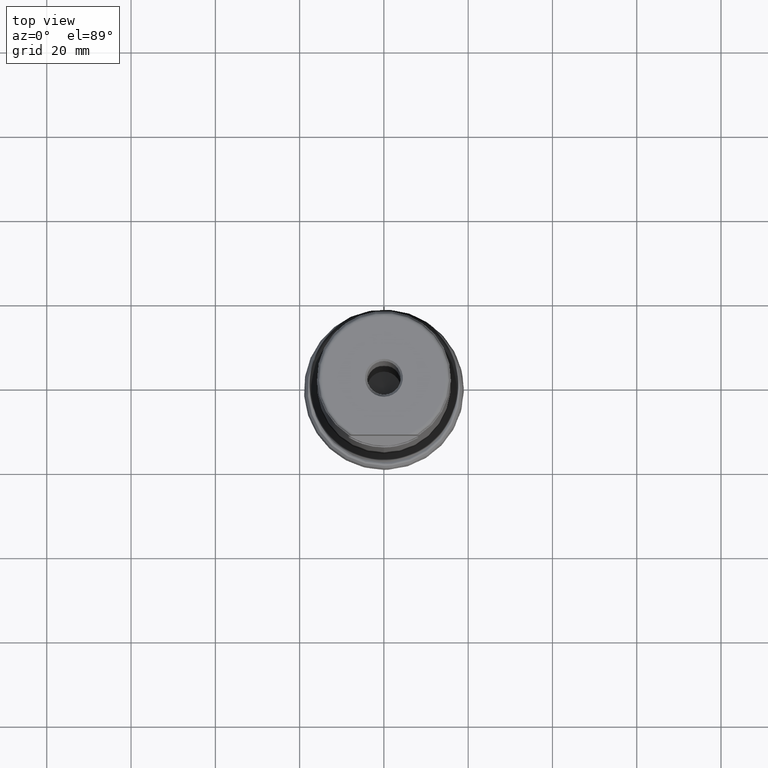
[diagram: clean part render]
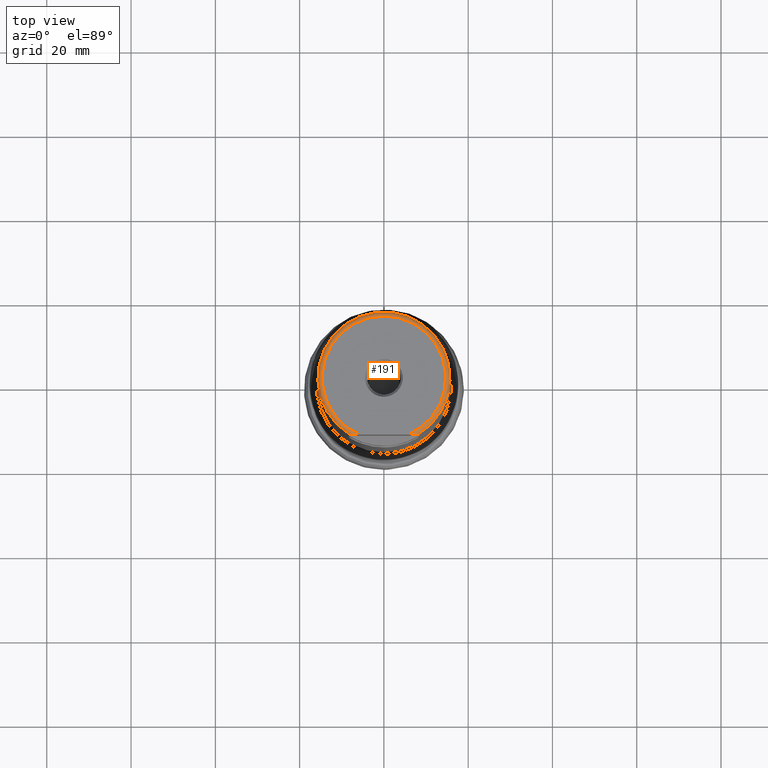
[diagram: same view with one face highlighted and labeled with its STEP entity id]
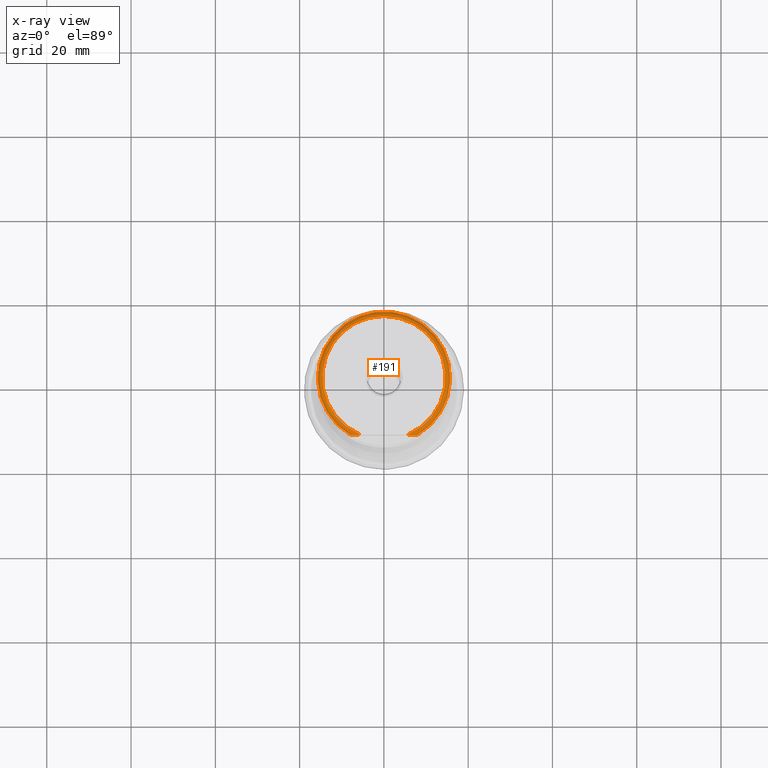
[diagram: x-ray of the same camera — body ghosted, the highlighted face saturated]
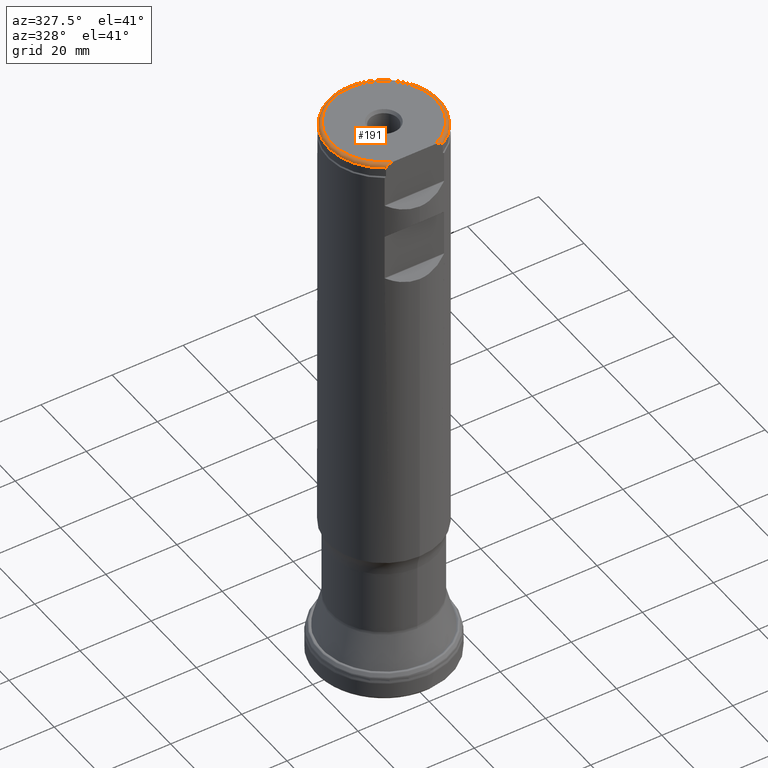
[diagram: same view with one face highlighted and labeled with its STEP entity id]
A machine part, top view. The second image highlights one B-rep face of the part: STEP entity #191.
The next image is the same camera in x-ray: the body ghosted, the highlighted face saturated — about 0% of this face is hidden behind the body in this view.
A second angle (auxiliary view) of the same face is appended — the face is thin or edge-on in the first view.
In plain terms, the highlighted toroidal blend (fillet) surface has major radius 14.675 mm and minor (blend) radius 1 mm.
Its self-contained STEP definition (entity closure, byte-faithful):
#154=TOROIDAL_SURFACE('',#824,14.675,1.);
#178=FACE_OUTER_BOUND('',#376,.T.);
#191=ADVANCED_FACE('',(#178),#154,.T.);
#249=CIRCLE('',#819,15.675);
#251=CIRCLE('',#822,14.675);
#376=EDGE_LOOP('',(#526,#527,#528,#529));
#526=ORIENTED_EDGE('',*,*,#714,.F.);
#527=ORIENTED_EDGE('',*,*,#720,.T.);
#528=ORIENTED_EDGE('',*,*,#718,.F.);
#529=ORIENTED_EDGE('',*,*,#721,.T.);
#653=VERTEX_POINT('',#1396);
#654=VERTEX_POINT('',#1397);
#656=VERTEX_POINT('',#1404);
#657=VERTEX_POINT('',#1405);
#714=EDGE_CURVE('',#653,#654,#249,.T.);
#718=EDGE_CURVE('',#656,#657,#251,.T.);
#720=EDGE_CURVE('',#653,#657,#793,.T.);
#721=EDGE_CURVE('',#656,#654,#794,.T.);
#793=B_SPLINE_CURVE_WITH_KNOTS('',3,(#1408,#1409,#1410,#1411,#1412,#1413,
#1414,#1415),.UNSPECIFIED.,.F.,.F.,(4,2,2,4),(0.,0.249999999999999,0.499999999999999,
1.),.UNSPECIFIED.);
#794=B_SPLINE_CURVE_WITH_KNOTS('',3,(#1416,#1417,#1418,#1419,#1420,#1421,
#1422,#1423),.UNSPECIFIED.,.F.,.F.,(4,2,2,4),(0.,0.5,0.75,1.),
 .UNSPECIFIED.);
#819=AXIS2_PLACEMENT_3D('',#1395,#908,#909);
#822=AXIS2_PLACEMENT_3D('',#1403,#916,#917);
#824=AXIS2_PLACEMENT_3D('',#1424,#921,#922);
#908=DIRECTION('',(0.,-1.17145536458252E-15,-1.));
#909=DIRECTION('',(0.,-1.,1.77069062938621E-15));
#916=DIRECTION('',(0.,1.17145536458252E-15,1.));
#917=DIRECTION('',(0.,-1.,1.8913509789185E-15));
#921=DIRECTION('',(0.,1.17145536458252E-15,1.));
#922=DIRECTION('',(0.,-1.,1.77069062938621E-15));
#1395=CARTESIAN_POINT('',(0.,1.92235825327992E-13,164.1));
#1396=CARTESIAN_POINT('',(-7.9872189302887,-13.4873999999998,164.099999999989));
#1397=CARTESIAN_POINT('',(7.98721893026602,-13.4873999999998,164.1));
#1403=CARTESIAN_POINT('',(0.,1.93407280692575E-13,165.1));
#1404=CARTESIAN_POINT('',(5.78322282468843,-13.4873999999998,165.1));
#1405=CARTESIAN_POINT('',(-5.78322282468864,-13.4873999999998,165.1));
#1408=CARTESIAN_POINT('',(-7.98721893026687,-13.4873999999998,164.099999999988));
#1409=CARTESIAN_POINT('',(-7.98721893027205,-13.4873999999998,164.32020277002));
#1410=CARTESIAN_POINT('',(-7.83736774434983,-13.4873999999998,164.515154682752));
#1411=CARTESIAN_POINT('',(-7.48623082979299,-13.4873999999998,164.780139720299));
#1412=CARTESIAN_POINT('',(-7.28172032421563,-13.4873999999998,164.867554950671));
#1413=CARTESIAN_POINT('',(-6.65729293981299,-13.4873999999998,165.0609297127));
#1414=CARTESIAN_POINT('',(-6.21637245039726,-13.4873999999998,165.1));
#1415=CARTESIAN_POINT('',(-5.78322282468864,-13.4873999999998,165.1));
#1416=CARTESIAN_POINT('',(5.78322282468843,-13.4873999999998,165.1));
#1417=CARTESIAN_POINT('',(6.21394869343174,-13.4873999999998,165.1));
#1418=CARTESIAN_POINT('',(6.65580566004194,-13.4873999999998,165.061664403719));
#1419=CARTESIAN_POINT('',(7.28486381477454,-13.4873999999998,164.86644362587));
#1420=CARTESIAN_POINT('',(7.48748729423044,-13.4873999999998,164.779507582041));
#1421=CARTESIAN_POINT('',(7.83842269980531,-13.4873999999998,164.514040424023));
#1422=CARTESIAN_POINT('',(7.98721893026602,-13.4873999999998,164.322383261353));
#1423=CARTESIAN_POINT('',(7.98721893026602,-13.4873999999998,164.1));
#1424=CARTESIAN_POINT('',(0.,1.92235825327992E-13,164.1));